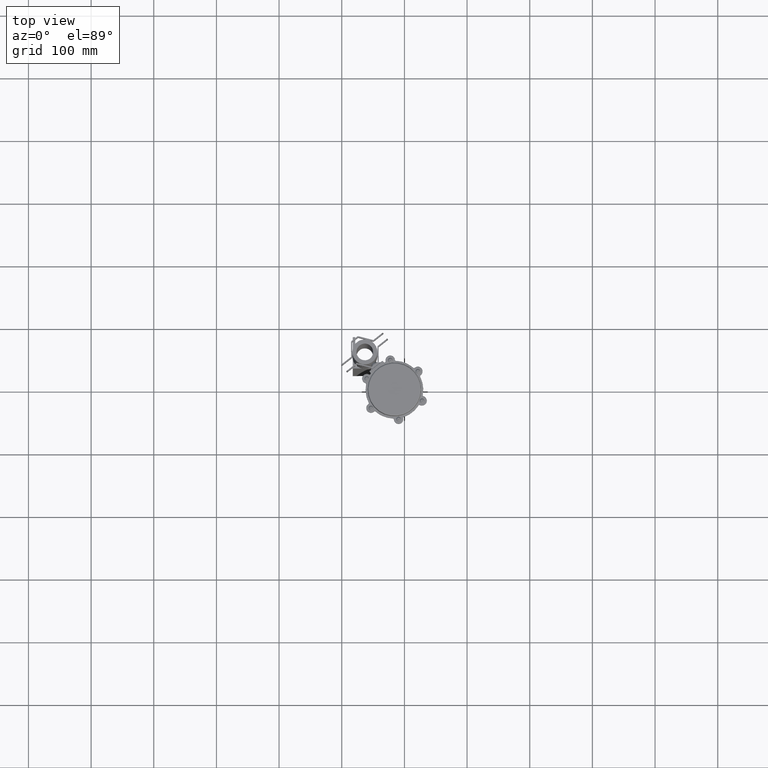
[diagram: clean part render]
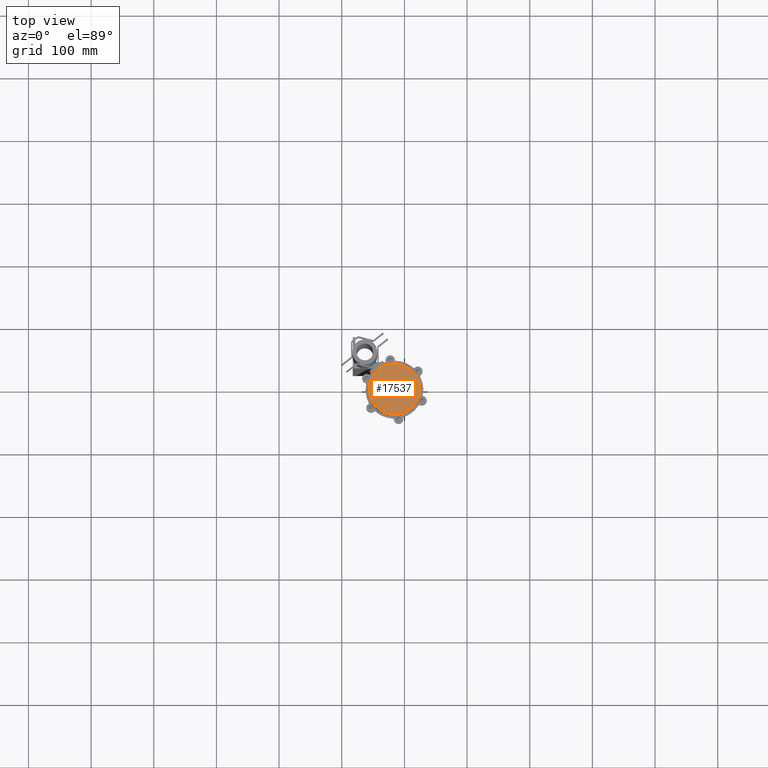
[diagram: same view with one face highlighted and labeled with its STEP entity id]
A machine part, top view. The second image highlights one B-rep face of the part: STEP entity #17537.
In plain terms, the highlighted planar face has unit normal (0, 0, 1).
Its self-contained STEP definition (entity closure, byte-faithful):
#2932 = CARTESIAN_POINT ( 'NONE',  ( -40.50000000000031300, -1.210511725580065700E-012, -43.00000000000000000 ) ) ;
#4121 = AXIS2_PLACEMENT_3D ( 'NONE', #5114, #25734, #8100 ) ;
#5114 = CARTESIAN_POINT ( 'NONE',  ( -3.046066003598024700E-013, -1.210511725580065700E-012, -43.00000000000000000 ) ) ;
#7066 = CIRCLE ( 'NONE', #22953, 40.50000000000000700 ) ;
#8100 = DIRECTION ( 'NONE',  ( -1.000000000000000000, 0.0000000000000000000, 0.0000000000000000000 ) ) ;
#8731 = CARTESIAN_POINT ( 'NONE',  ( 40.49999999999970200, -1.205429441363604100E-012, -43.00000000000000000 ) ) ;
#9339 = FACE_OUTER_BOUND ( 'NONE', #19759, .T. ) ;
#9965 = CARTESIAN_POINT ( 'NONE',  ( -3.046066003598024700E-013, -1.210511725580065700E-012, -43.00000000000000000 ) ) ;
#12938 = DIRECTION ( 'NONE',  ( -1.000000000000000000, 0.0000000000000000000, 0.0000000000000000000 ) ) ;
#13890 = VERTEX_POINT ( 'NONE', #8731 ) ;
#15849 = VERTEX_POINT ( 'NONE', #2932 ) ;
#17537 = ADVANCED_FACE ( 'NONE', ( #9339 ), #25755, .T. ) ;
#18405 = CIRCLE ( 'NONE', #4121, 40.50000000000000700 ) ;
#19759 = EDGE_LOOP ( 'NONE', ( #36219, #35097 ) ) ;
#19993 = DIRECTION ( 'NONE',  ( -1.000000000000000000, 0.0000000000000000000, -0.0000000000000000000 ) ) ;
#22953 = AXIS2_PLACEMENT_3D ( 'NONE', #9965, #30546, #12938 ) ;
#25417 = EDGE_CURVE ( 'NONE', #13890, #15849, #18405, .T. ) ;
#25734 = DIRECTION ( 'NONE',  ( 0.0000000000000000000, 0.0000000000000000000, -1.000000000000000000 ) ) ;
#25755 = PLANE ( 'NONE',  #26005 ) ;
#26005 = AXIS2_PLACEMENT_3D ( 'NONE', #28724, #37568, #19993 ) ;
#28724 = CARTESIAN_POINT ( 'NONE',  ( -3.046066003598024700E-013, -1.210511725580065700E-012, -43.00000000000000000 ) ) ;
#30546 = DIRECTION ( 'NONE',  ( 0.0000000000000000000, 0.0000000000000000000, -1.000000000000000000 ) ) ;
#34940 = EDGE_CURVE ( 'NONE', #15849, #13890, #7066, .T. ) ;
#35097 = ORIENTED_EDGE ( 'NONE', *, *, #25417, .T. ) ;
#36219 = ORIENTED_EDGE ( 'NONE', *, *, #34940, .T. ) ;
#37568 = DIRECTION ( 'NONE',  ( 0.0000000000000000000, 0.0000000000000000000, -1.000000000000000000 ) ) ;